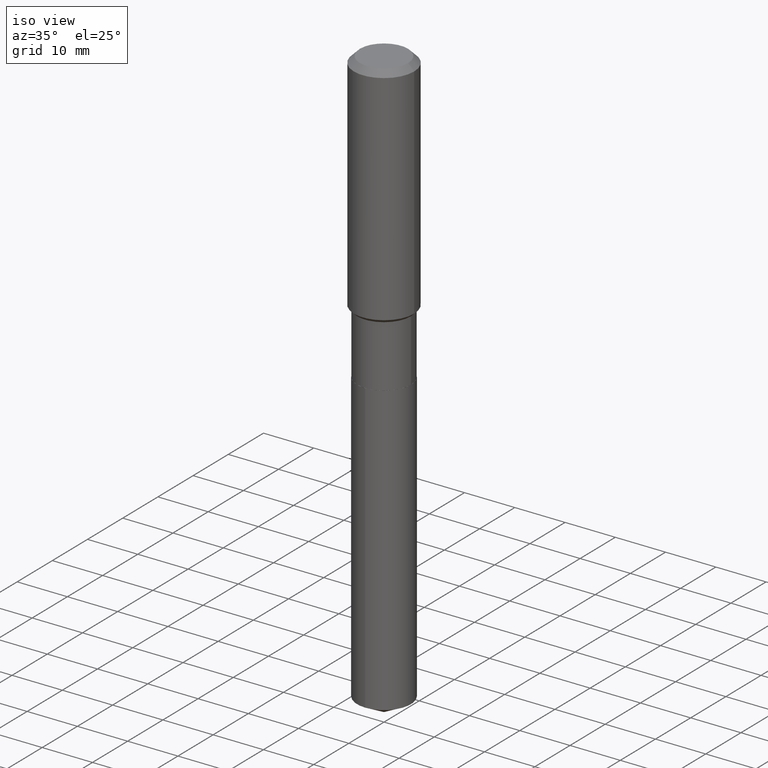
[diagram: clean part render]
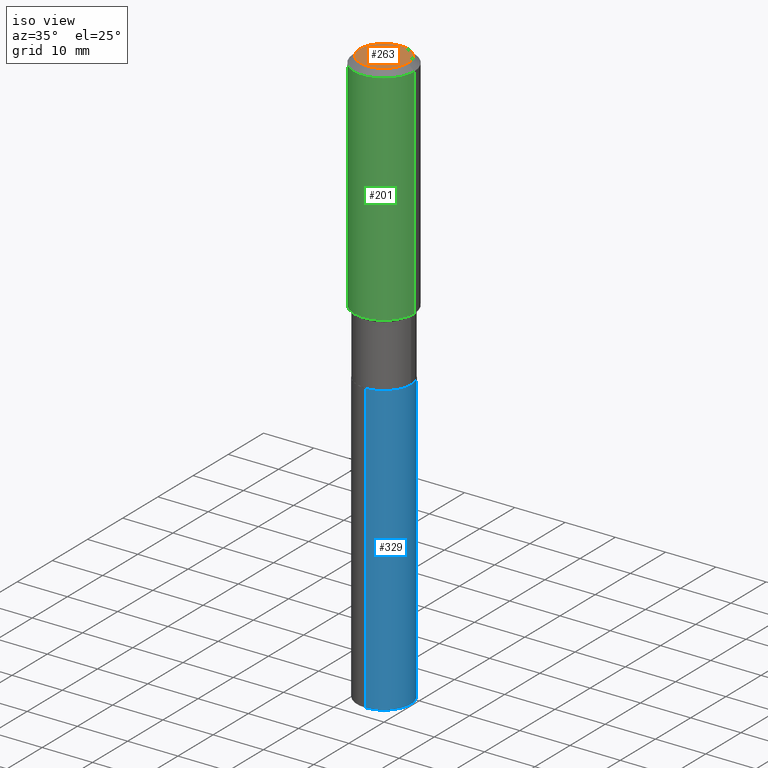
[diagram: same view with three faces highlighted in distinct colors, each labeled with its STEP entity id]
A machine part, iso view with three faces highlighted in distinct colors.
Their STEP definitions:

[orange] entity #263 — the highlighted planar face has unit normal (0, -0, -1).
#2 = CIRCLE ( 'NONE', #314, 0.1889600000000000168 ) ;
#41 = CIRCLE ( 'NONE', #247, 0.1889600000000000168 ) ;
#52 = VERTEX_POINT ( 'NONE', #451 ) ;
#58 = CARTESIAN_POINT ( 'NONE',  ( -4.713871149261273121E-47, 6.730158695841826722E-33, 1.927594061857931128E-18 ) ) ;
#85 = DIRECTION ( 'NONE',  ( 1.000000000000000000, -6.982962677686266711E-15, 4.876185090822587894E-29 ) ) ;
#131 = ORIENTED_EDGE ( 'NONE', *, *, #267, .T. ) ;
#159 = CARTESIAN_POINT ( 'NONE',  ( -9.427742298522546243E-47, 1.346031739168365344E-32, 3.855188123715862256E-18 ) ) ;
#187 = DIRECTION ( 'NONE',  ( 2.438088387897960049E-29, -3.491481338843145188E-15, -1.000000000000000000 ) ) ;
#189 = FACE_OUTER_BOUND ( 'NONE', #386, .T. ) ;
#247 = AXIS2_PLACEMENT_3D ( 'NONE', #159, #431, #85 ) ;
#263 = ADVANCED_FACE ( 'NONE', ( #189 ), #270, .F. ) ;
#267 = EDGE_CURVE ( 'NONE', #484, #52, #41, .T. ) ;
#270 = PLANE ( 'NONE',  #439 ) ;
#296 = DIRECTION ( 'NONE',  ( -2.445468806185136597E-29, 3.491481338843145583E-15, 1.000000000000000000 ) ) ;
#304 = CARTESIAN_POINT ( 'NONE',  ( -0.1889600000000000168, 1.401969416799070942E-15, 3.855188123706346622E-18 ) ) ;
#314 = AXIS2_PLACEMENT_3D ( 'NONE', #409, #296, #443 ) ;
#348 = DIRECTION ( 'NONE',  ( -1.000000000000000000, 6.982962677686265922E-15, -4.876176775795935793E-29 ) ) ;
#350 = EDGE_CURVE ( 'NONE', #52, #484, #2, .T. ) ;
#386 = EDGE_LOOP ( 'NONE', ( #131, #489 ) ) ;
#409 = CARTESIAN_POINT ( 'NONE',  ( -9.427742298522546243E-47, 1.346031739168365344E-32, 3.855188123715862256E-18 ) ) ;
#431 = DIRECTION ( 'NONE',  ( -2.445468806185136597E-29, 3.491481338843145583E-15, 1.000000000000000000 ) ) ;
#439 = AXIS2_PLACEMENT_3D ( 'NONE', #58, #187, #348 ) ;
#443 = DIRECTION ( 'NONE',  ( 1.000000000000000000, -6.982962677686266711E-15, 4.876185090822587894E-29 ) ) ;
#451 = CARTESIAN_POINT ( 'NONE',  ( 0.1889600000000000168, -1.540873453589747738E-15, 3.855188123725863225E-18 ) ) ;
#484 = VERTEX_POINT ( 'NONE', #304 ) ;
#489 = ORIENTED_EDGE ( 'NONE', *, *, #350, .T. ) ;

[blue] entity #329 — the highlighted cylindrical surface (edge-blend (fillet) strip) has radius 5.3505 mm, axis along (-0, 0, 1).
#6 = CARTESIAN_POINT ( 'NONE',  ( -1.470961088054556343E-15, -0.2106500000000079420, -2.271699999999998720 ) ) ;
#26 = DIRECTION ( 'NONE',  ( -6.982962677686265922E-15, -1.000000000000000000, 3.890597664843479129E-15 ) ) ;
#31 = CARTESIAN_POINT ( 'NONE',  ( 1.108696789848353068E-28, -1.582937420449712200E-14, -4.533695408220509648 ) ) ;
#36 = DIRECTION ( 'NONE',  ( -2.445449885251716834E-29, 3.491508434696715420E-15, 1.000000000000000000 ) ) ;
#53 = DIRECTION ( 'NONE',  ( -2.445449885251716553E-29, 3.491508434696715420E-15, 1.000000000000000000 ) ) ;
#54 = ORIENTED_EDGE ( 'NONE', *, *, #340, .F. ) ;
#72 = DIRECTION ( 'NONE',  ( -6.982962677686265922E-15, -1.000000000000000000, 3.890597664843479129E-15 ) ) ;
#75 = AXIS2_PLACEMENT_3D ( 'NONE', #203, #300, #72 ) ;
#76 = EDGE_CURVE ( 'NONE', #373, #83, #425, .T. ) ;
#83 = VERTEX_POINT ( 'NONE', #6 ) ;
#98 = AXIS2_PLACEMENT_3D ( 'NONE', #31, #36, #106 ) ;
#105 = DIRECTION ( 'NONE',  ( -2.445449885251716553E-29, 3.491508434696715420E-15, 1.000000000000000000 ) ) ;
#106 = DIRECTION ( 'NONE',  ( -6.982962677686265922E-15, -1.000000000000000000, 2.593731776562319814E-15 ) ) ;
#111 = CIRCLE ( 'NONE', #98, 0.2106500000000000039 ) ;
#124 = LINE ( 'NONE', #237, #156 ) ;
#156 = VECTOR ( 'NONE', #53, 39.37007874015748143 ) ;
#175 = CARTESIAN_POINT ( 'NONE',  ( 1.496758272878761510E-15, 0.2106499999999841555, -4.533695408220510537 ) ) ;
#193 = CYLINDRICAL_SURFACE ( 'NONE', #194, 0.2106500000000000039 ) ;
#194 = AXIS2_PLACEMENT_3D ( 'NONE', #440, #400, #26 ) ;
#203 = CARTESIAN_POINT ( 'NONE',  ( 5.555371487010773044E-29, -7.931598157449970914E-15, -2.271699999999999608 ) ) ;
#237 = CARTESIAN_POINT ( 'NONE',  ( 1.496758272878706487E-15, 0.2106499999999920936, -2.271700000000000053 ) ) ;
#258 = CARTESIAN_POINT ( 'NONE',  ( -1.470961088054556343E-15, -0.2106500000000079420, -2.271699999999998720 ) ) ;
#276 = FACE_OUTER_BOUND ( 'NONE', #315, .T. ) ;
#293 = EDGE_CURVE ( 'NONE', #382, #367, #124, .T. ) ;
#300 = DIRECTION ( 'NONE',  ( -2.445449885251716834E-29, 3.491508434696715420E-15, 1.000000000000000000 ) ) ;
#315 = EDGE_LOOP ( 'NONE', ( #320, #377, #54, #487 ) ) ;
#320 = ORIENTED_EDGE ( 'NONE', *, *, #385, .T. ) ;
#329 = ADVANCED_FACE ( 'NONE', ( #276 ), #193, .T. ) ;
#336 = CIRCLE ( 'NONE', #75, 0.2106500000000000039 ) ;
#340 = EDGE_CURVE ( 'NONE', #83, #367, #336, .T. ) ;
#367 = VERTEX_POINT ( 'NONE', #375 ) ;
#373 = VERTEX_POINT ( 'NONE', #415 ) ;
#375 = CARTESIAN_POINT ( 'NONE',  ( 1.496758272878762299E-15, 0.2106499999999920936, -2.271700000000000053 ) ) ;
#377 = ORIENTED_EDGE ( 'NONE', *, *, #293, .T. ) ;
#382 = VERTEX_POINT ( 'NONE', #175 ) ;
#385 = EDGE_CURVE ( 'NONE', #373, #382, #111, .T. ) ;
#396 = VECTOR ( 'NONE', #105, 39.37007874015748143 ) ;
#400 = DIRECTION ( 'NONE',  ( -2.445449885251716834E-29, 3.491508434696715420E-15, 1.000000000000000000 ) ) ;
#415 = CARTESIAN_POINT ( 'NONE',  ( -1.470961088054501123E-15, -0.2106500000000158246, -4.533695408220509648 ) ) ;
#425 = LINE ( 'NONE', #258, #396 ) ;
#440 = CARTESIAN_POINT ( 'NONE',  ( 5.555371487010773044E-29, -7.931598157449970914E-15, -2.271699999999999608 ) ) ;
#487 = ORIENTED_EDGE ( 'NONE', *, *, #76, .F. ) ;

[green] entity #201 — the highlighted cylindrical surface (partial cylindrical patch) has radius 5.9995 mm, axis along (-0, 0, 1).
#7 = VERTEX_POINT ( 'NONE', #9 ) ;
#9 = CARTESIAN_POINT ( 'NONE',  ( 0.2362000000000002153, -7.800143885042523413E-15, -1.761649999999999716 ) ) ;
#11 = AXIS2_PLACEMENT_3D ( 'NONE', #174, #360, #108 ) ;
#15 = CARTESIAN_POINT ( 'NONE',  ( -0.2361999999999999933, -1.479550897644631324E-15, -0.04724000000000028177 ) ) ;
#19 = VERTEX_POINT ( 'NONE', #213 ) ;
#24 = ORIENTED_EDGE ( 'NONE', *, *, #438, .T. ) ;
#60 = DIRECTION ( 'NONE',  ( -2.445468806185136597E-29, 3.491481338843145583E-15, 1.000000000000000000 ) ) ;
#77 = CARTESIAN_POINT ( 'NONE',  ( 0.2361999999999999933, -1.814313362916447440E-15, -0.04724000000000028177 ) ) ;
#92 = CYLINDRICAL_SURFACE ( 'NONE', #182, 0.2362000000000001043 ) ;
#103 = ORIENTED_EDGE ( 'NONE', *, *, #364, .F. ) ;
#108 = DIRECTION ( 'NONE',  ( 1.000000000000000000, -6.982962677686266711E-15, 0.000000000000000000 ) ) ;
#130 = DIRECTION ( 'NONE',  ( -2.445468806185136597E-29, 3.491481338843145583E-15, 1.000000000000000000 ) ) ;
#133 = CIRCLE ( 'NONE', #362, 0.2362000000000002153 ) ;
#134 = VERTEX_POINT ( 'NONE', #77 ) ;
#147 = ORIENTED_EDGE ( 'NONE', *, *, #281, .T. ) ;
#153 = CARTESIAN_POINT ( 'NONE',  ( 0.2362000000000001043, -1.649375784469496920E-15, 1.151752954443000508E-29 ) ) ;
#155 = FACE_OUTER_BOUND ( 'NONE', #180, .T. ) ;
#169 = EDGE_CURVE ( 'NONE', #19, #223, #389, .T. ) ;
#174 = CARTESIAN_POINT ( 'NONE',  ( 1.155239464041865506E-30, -1.649375784469511859E-16, -0.04724000000000028177 ) ) ;
#180 = EDGE_LOOP ( 'NONE', ( #295, #24, #147, #103 ) ) ;
#182 = AXIS2_PLACEMENT_3D ( 'NONE', #474, #60, #466 ) ;
#201 = ADVANCED_FACE ( 'NONE', ( #155 ), #92, .T. ) ;
#204 = CIRCLE ( 'NONE', #11, 0.2361999999999999933 ) ;
#213 = CARTESIAN_POINT ( 'NONE',  ( -0.2362000000000002153, -4.472466158707667338E-15, -1.761649999999999716 ) ) ;
#223 = VERTEX_POINT ( 'NONE', #15 ) ;
#224 = VECTOR ( 'NONE', #428, 39.37007874015748143 ) ;
#232 = LINE ( 'NONE', #153, #224 ) ;
#281 = EDGE_CURVE ( 'NONE', #7, #134, #232, .T. ) ;
#295 = ORIENTED_EDGE ( 'NONE', *, *, #169, .F. ) ;
#308 = DIRECTION ( 'NONE',  ( -2.445468806185136877E-29, 3.491481338843145188E-15, 1.000000000000000000 ) ) ;
#330 = DIRECTION ( 'NONE',  ( 1.000000000000000000, -6.982962677686266711E-15, 0.000000000000000000 ) ) ;
#346 = CARTESIAN_POINT ( 'NONE',  ( -0.2362000000000001043, 1.678301941865357380E-15, -1.161852468318209317E-29 ) ) ;
#360 = DIRECTION ( 'NONE',  ( -2.445468806185136597E-29, 3.491481338843145583E-15, 1.000000000000000000 ) ) ;
#362 = AXIS2_PLACEMENT_3D ( 'NONE', #378, #130, #330 ) ;
#364 = EDGE_CURVE ( 'NONE', #223, #134, #204, .T. ) ;
#378 = CARTESIAN_POINT ( 'NONE',  ( 4.308060122416044929E-29, -6.150768100573026887E-15, -1.761649999999999716 ) ) ;
#389 = LINE ( 'NONE', #346, #411 ) ;
#411 = VECTOR ( 'NONE', #308, 39.37007874015748143 ) ;
#428 = DIRECTION ( 'NONE',  ( -2.445468806185136877E-29, 3.491481338843145188E-15, 1.000000000000000000 ) ) ;
#438 = EDGE_CURVE ( 'NONE', #19, #7, #133, .T. ) ;
#466 = DIRECTION ( 'NONE',  ( 1.000000000000000000, -6.982962677686266711E-15, 4.876176775795935793E-29 ) ) ;
#474 = CARTESIAN_POINT ( 'NONE',  ( 0.000000000000000000, 0.000000000000000000, 0.000000000000000000 ) ) ;